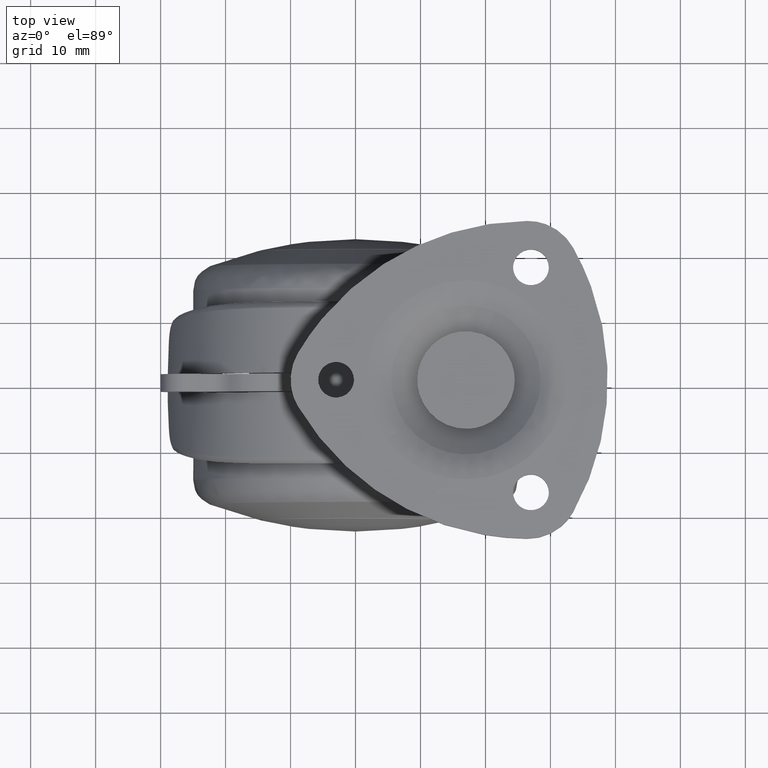
[diagram: clean part render]
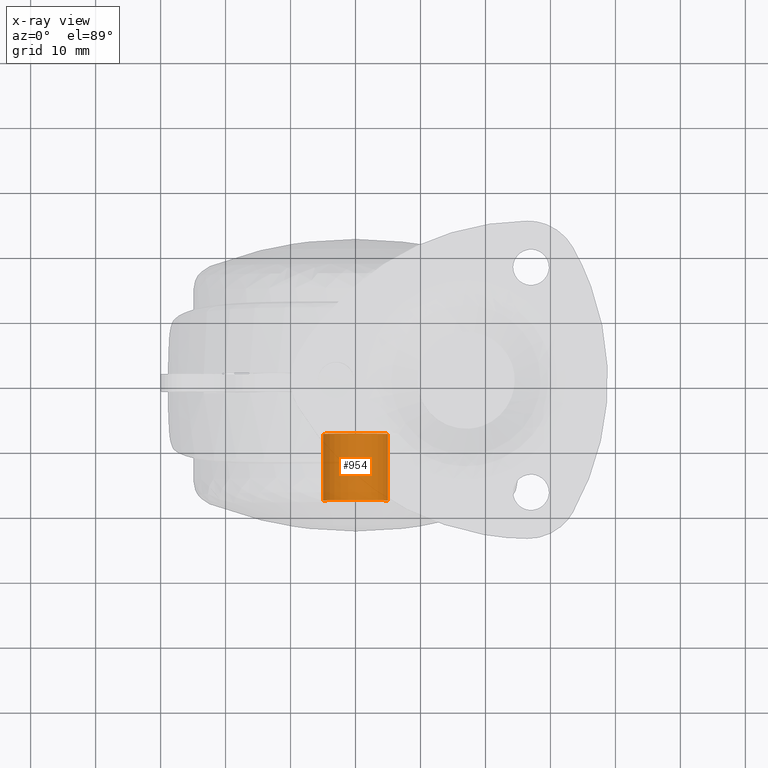
[diagram: x-ray — body ghosted, one internal face saturated and labeled with its STEP entity id]
A machine part, top view, then the same camera in x-ray: the body is ghosted and one INTERNAL B-rep face — a face not visible from any outside direction — is saturated and labeled: STEP entity #954.
In plain terms, the highlighted face is a freeform B-spline surface patch.
Its self-contained STEP definition (entity closure, byte-faithful):
#852=CARTESIAN_POINT('',(4.965047631818332,-7.243749999999825,-0.590171173283794));
#853=CARTESIAN_POINT('',(4.981938077243028,-7.243749999999823,-0.448073643189890));
#854=CARTESIAN_POINT('',(4.990673992109334,-7.243749999999824,-0.305242697674287));
#855=CARTESIAN_POINT('',(5.295916689783620,-7.243749999999825,4.685431294435047));
#856=CARTESIAN_POINT('',(0.305242697674285,-7.243749999999824,4.990673992109332));
#857=CARTESIAN_POINT('',(-4.685431294435048,-7.243749999999825,5.295916689783616));
#858=CARTESIAN_POINT('',(-4.990673992109334,-7.243749999999824,0.305242697674283));
#859=CARTESIAN_POINT('',(4.965047631818332,-18.012656250000017,-0.590171173283794));
#860=CARTESIAN_POINT('',(4.981938077243028,-18.012656250000010,-0.448073643189890));
#861=CARTESIAN_POINT('',(4.990673992109334,-18.012656250000010,-0.305242697674287));
#862=CARTESIAN_POINT('',(5.295916689783620,-18.012656250000017,4.685431294435047));
#863=CARTESIAN_POINT('',(0.305242697674285,-18.012656250000010,4.990673992109332));
#864=CARTESIAN_POINT('',(-4.685431294435048,-18.012656250000017,5.295916689783616));
#865=CARTESIAN_POINT('',(-4.990673992109334,-18.012656250000010,0.305242697674283));
#873=(BOUNDED_SURFACE()B_SPLINE_SURFACE(2,1,((#852,#859),(#853,#860),(#854,#861),(#855,#862),(#856,#863),(#857,#864),(#858,#865)),.UNSPECIFIED.,.F.,.F.,.U.)B_SPLINE_SURFACE_WITH_KNOTS((3,2,2,3),(2,2),(0.0,0.331370849898476,8.615642097360375,16.899913344822270),(0.0,10.768906250000191),.UNSPECIFIED.)GEOMETRIC_REPRESENTATION_ITEM()RATIONAL_B_SPLINE_SURFACE(((0.977505800795127,0.977505800795127),(0.988284271247462,0.988284271247462),(1.0,1.0),(0.707106781186548,0.707106781186548),(1.0,1.0),(0.707106781186548,0.707106781186548),(1.0,1.0)))REPRESENTATION_ITEM('')SURFACE());
#874=CARTESIAN_POINT('',(4.965047631814526,-17.750000000000000,-0.590171173315805));
#875=VERTEX_POINT('',#874);
#876=CARTESIAN_POINT('',(0.0,-17.750000000000000,4.999999999999998));
#877=VERTEX_POINT('',#876);
#878=CARTESIAN_POINT('',(4.965047631814526,-17.750000000000004,-0.590171173315805));
#879=CARTESIAN_POINT('',(4.999999999999999,-17.749999999999993,-0.296120598291902));
#880=CARTESIAN_POINT('',(5.0,-17.750000000000000,-1.776357E-015));
#881=CARTESIAN_POINT('',(5.000000000000001,-17.750000000000000,4.999999999999997));
#882=CARTESIAN_POINT('',(0.0,-17.750000000000000,4.999999999999998));
#890=(BOUNDED_CURVE()B_SPLINE_CURVE(2,(#878,#879,#880,#881,#882),.UNSPECIFIED.,.F.,.U.)B_SPLINE_CURVE_WITH_KNOTS((3,2,3),(0.229562473513465,0.250000000000000,0.500000000000000),.UNSPECIFIED.)CURVE()GEOMETRIC_REPRESENTATION_ITEM()RATIONAL_B_SPLINE_CURVE((0.956026754183614,0.976055948331094,1.0,0.707106781186548,1.0))REPRESENTATION_ITEM(''));
#891=EDGE_CURVE('',#875,#877,#890,.T.);
#892=ORIENTED_EDGE('',*,*,#891,.T.);
#893=CARTESIAN_POINT('',(-4.990673992104304,-17.750000000000000,0.305242697756533));
#894=VERTEX_POINT('',#893);
#895=CARTESIAN_POINT('',(0.0,-17.750000000000000,4.999999999999998));
#896=CARTESIAN_POINT('',(-4.703530334373140,-17.749999999999996,4.999999999999998));
#897=CARTESIAN_POINT('',(-4.990673992104304,-17.750000000000000,0.305242697756533));
#905=(BOUNDED_CURVE()B_SPLINE_CURVE(2,(#895,#896,#897),.UNSPECIFIED.,.F.,.U.)B_SPLINE_CURVE_WITH_KNOTS((3,3),(0.500000000000000,0.739332962236281),.UNSPECIFIED.)CURVE()GEOMETRIC_REPRESENTATION_ITEM()RATIONAL_B_SPLINE_CURVE((1.0,0.719603993289829,0.976072041661012))REPRESENTATION_ITEM(''));
#906=EDGE_CURVE('',#877,#894,#905,.T.);
#907=ORIENTED_EDGE('',*,*,#906,.T.);
#908=CARTESIAN_POINT('',(-4.990673992104304,-7.499999999999830,0.305242697756533));
#909=VERTEX_POINT('',#908);
#910=CARTESIAN_POINT('',(-4.990673992104304,-7.499999999999830,0.305242697756533));
#911=CARTESIAN_POINT('',(-4.990673992104304,-17.750000000000000,0.305242697756533));
#912=QUASI_UNIFORM_CURVE('',1,(#910,#911),.UNSPECIFIED.,.F.,.U.);
#913=EDGE_CURVE('',#909,#894,#912,.T.);
#914=ORIENTED_EDGE('',*,*,#913,.F.);
#915=CARTESIAN_POINT('',(0.0,-7.499999999999830,4.999999999999998));
#916=VERTEX_POINT('',#915);
#917=CARTESIAN_POINT('',(0.0,-7.499999999999830,4.999999999999998));
#918=CARTESIAN_POINT('',(-4.703530334373140,-7.499999999999830,4.999999999999998));
#919=CARTESIAN_POINT('',(-4.990673992104304,-7.499999999999830,0.305242697756533));
#927=(BOUNDED_CURVE()B_SPLINE_CURVE(2,(#917,#918,#919),.UNSPECIFIED.,.F.,.U.)B_SPLINE_CURVE_WITH_KNOTS((3,3),(0.500000000000000,0.739332962236281),.UNSPECIFIED.)CURVE()GEOMETRIC_REPRESENTATION_ITEM()RATIONAL_B_SPLINE_CURVE((1.0,0.719603993289829,0.976072041661012))REPRESENTATION_ITEM(''));
#928=EDGE_CURVE('',#916,#909,#927,.T.);
#929=ORIENTED_EDGE('',*,*,#928,.F.);
#930=CARTESIAN_POINT('',(4.965047631814526,-7.499999999999830,-0.590171173315805));
#931=VERTEX_POINT('',#930);
#932=CARTESIAN_POINT('',(4.965047631814526,-7.499999999999830,-0.590171173315805));
#933=CARTESIAN_POINT('',(5.0,-7.499999999999830,-0.296120598291902));
#934=CARTESIAN_POINT('',(5.0,-7.499999999999830,-1.776357E-015));
#935=CARTESIAN_POINT('',(5.000000000000001,-7.499999999999829,4.999999999999997));
#936=CARTESIAN_POINT('',(0.0,-7.499999999999830,4.999999999999998));
#944=(BOUNDED_CURVE()B_SPLINE_CURVE(2,(#932,#933,#934,#935,#936),.UNSPECIFIED.,.F.,.U.)B_SPLINE_CURVE_WITH_KNOTS((3,2,3),(0.229562473513465,0.250000000000000,0.500000000000000),.UNSPECIFIED.)CURVE()GEOMETRIC_REPRESENTATION_ITEM()RATIONAL_B_SPLINE_CURVE((0.956026754183614,0.976055948331094,1.0,0.707106781186548,1.0))REPRESENTATION_ITEM(''));
#945=EDGE_CURVE('',#931,#916,#944,.T.);
#946=ORIENTED_EDGE('',*,*,#945,.F.);
#947=CARTESIAN_POINT('',(4.965047631814526,-7.499999999999830,-0.590171173315805));
#948=CARTESIAN_POINT('',(4.965047631814526,-17.750000000000000,-0.590171173315805));
#949=QUASI_UNIFORM_CURVE('',1,(#947,#948),.UNSPECIFIED.,.F.,.U.);
#950=EDGE_CURVE('',#931,#875,#949,.T.);
#951=ORIENTED_EDGE('',*,*,#950,.T.);
#952=EDGE_LOOP('',(#892,#907,#914,#929,#946,#951));
#953=FACE_OUTER_BOUND('',#952,.T.);
#954=ADVANCED_FACE('',(#953),#873,.F.);